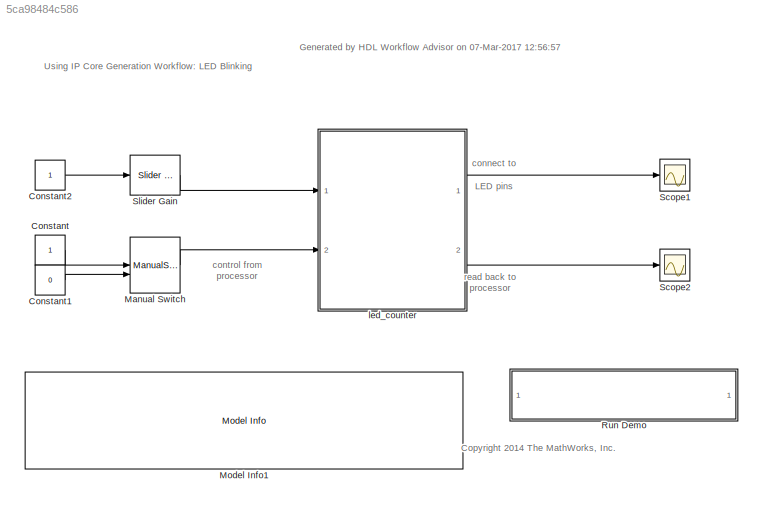
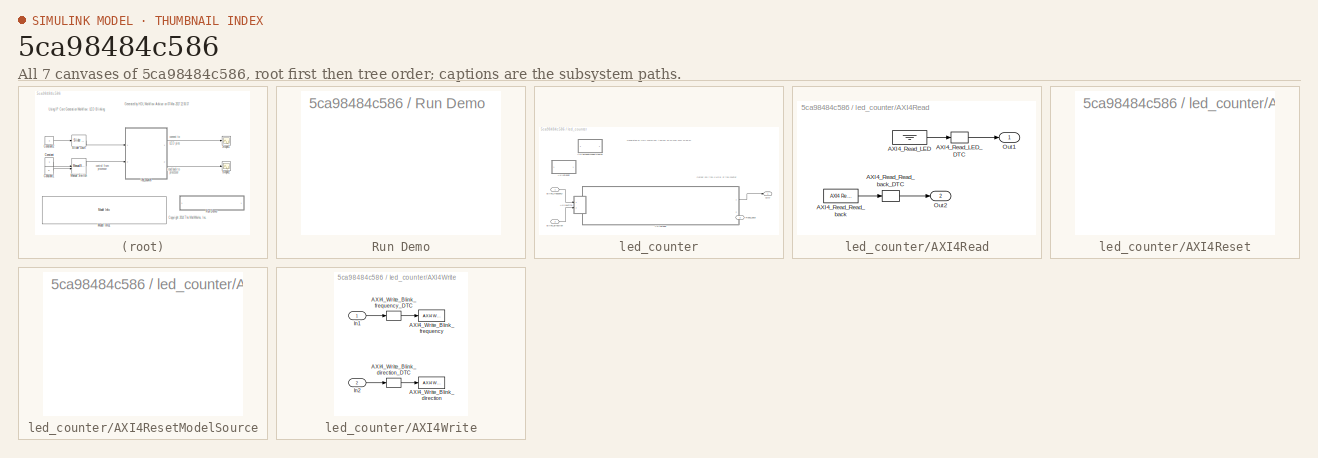
[diagram: thumbnail index - all 7 canvases of the model, root first then tree order]
MODEL slx_5ca98484c586
KIND model
CONFIG AbsTol = auto
CONFIG FixedStep = auto
CONFIG InitFcn = Ts = 1e-3;
CONFIG MaxStep = auto
CONFIG MinStep = auto
CONFIG RelTol = 1e-3
CONFIG SampleTimeConstraint = Unconstrained
CONFIG Solver = VariableStepAuto
CONFIG SolverMode = Auto
CONFIG SolverName = VariableStepAuto
CONFIG StartTime = 0.0
CONFIG StopTime = 10.0
BLOCK [Constant] Constant
  OutDataTypeStr = boolean
  SampleTime = Ts
BLOCK [Constant] Constant1
  OutDataTypeStr = boolean
  SampleTime = Ts
  Value = 0
BLOCK [Constant] Constant2
  OutDataTypeStr = fixdt(0, 4, 0)
  SampleTime = Ts
BLOCK [ManualSwitch] Manual Switch
BLOCK [Reference] Model Info1  REF=simulink/Model-Wide
Utilities/Model Info
  Ports = []
  SourceBlock = simulink/Model-Wide\nUtilities/Model Info
  SourceType = CMBlock
BLOCK [SubSystem] Run Demo
  OpenFcn = hdladvisor([bdroot, '/led_counter'])
  Ports = []
  RequestExecContextInheritance = off
  Variant = off
BLOCK [Scope] Scope1
  Ports = [1]
  ScopeSpecificationString = Simulink.scopes.TimeScopeBlockCfg('CurrentConfiguration', extmgr.ConfigurationSet(extmgr.Configuration('Core','General UI',true),extmgr.Configuration('Core','Source UI',true),extmgr.Configuration('Sources','WiredSimulink',true,'DataLoggingVariableName','ScopeData1','DataLoggingSaveFormat','StructureWithTime','DataLoggingDecimation','1','DataLoggingDecimateData',true),extmgr.Configuration('Visuals'...<+1643ch>
BLOCK [Scope] Scope2
  Ports = [1]
  ScopeSpecificationString = Simulink.scopes.TimeScopeBlockCfg('CurrentConfiguration', extmgr.ConfigurationSet(extmgr.Configuration('Core','General UI',true),extmgr.Configuration('Core','Source UI',true),extmgr.Configuration('Sources','WiredSimulink',true,'DataLoggingSaveFormat','StructureWithTime','DataLoggingDecimation','1','DataLoggingDecimateData',true),extmgr.Configuration('Visuals','Time Domain',true,'SerializedDisplays...<+1611ch>
BLOCK [Reference] Slider Gain  REF=simulink/Math
Operations/Slider
Gain
  Ports = [1, 1]
  SourceBlock = simulink/Math\nOperations/Slider\nGain
  SourceType = Slider Gain
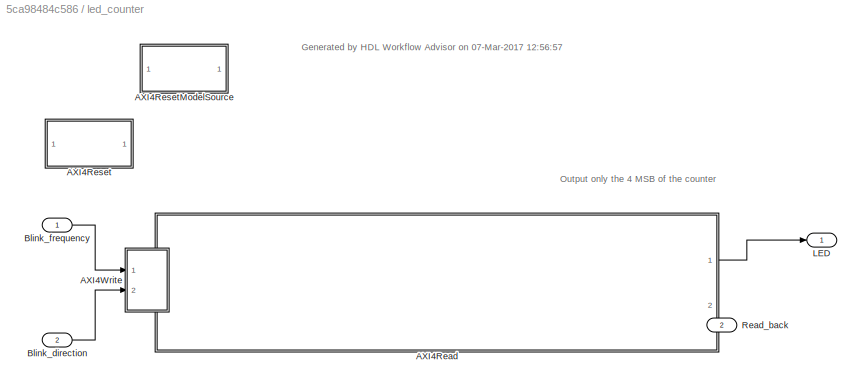
BLOCK [SubSystem] led_counter
  Ports = [2, 2]
  RequestExecContextInheritance = off
  TreatAsAtomicUnit = on
  Variant = off
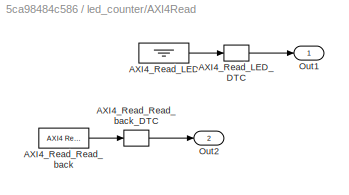
BLOCK [SubSystem] led_counter/AXI4Read
  Ports = [0, 2]
  Priority = 10
  RequestExecContextInheritance = off
  Variant = off
BLOCK [Ground] led_counter/AXI4Read/AXI4_Read_LED
BLOCK [DataTypeConversion] led_counter/AXI4Read/AXI4_Read_LED_DTC
  ConvertRealWorld = Stored Integer (SI)
  OutDataTypeStr = fixdt('ufix4')
  RndMeth = Floor
  SaturateOnIntegerOverflow = off
BLOCK [Reference] led_counter/AXI4Read/AXI4_Read_Read_back  REF=alterasoclib/AXI4 Read
  Ports = [0, 1]
  Priority = 3
  SourceBlock = alterasoclib/AXI4 Read
  SourceType = AXI4 Read
BLOCK [DataTypeConversion] led_counter/AXI4Read/AXI4_Read_Read_back_DTC
  ConvertRealWorld = Stored Integer (SI)
  OutDataTypeStr = fixdt('uint8')
  RndMeth = Floor
  SaturateOnIntegerOverflow = off
BLOCK [Outport] led_counter/AXI4Read/Out1
  IconDisplay = Port number
BLOCK [Outport] led_counter/AXI4Read/Out2
  IconDisplay = Port number
  Port = 2
BLOCK [SubSystem] led_counter/AXI4Reset
  CopyFcn = cccopyfcn(gcb)
  OpenFcn = ccopenfcn('System Initialize Function')
  Ports = []
  RequestExecContextInheritance = off
  Variant = off
BLOCK [SubSystem] led_counter/AXI4ResetModelSource
  CopyFcn = cccopyfcn(gcb)
  OpenFcn = ccopenfcn('Model Source')
  Ports = []
  RequestExecContextInheritance = off
  Variant = off
BLOCK [SubSystem] led_counter/AXI4Write
  Ports = [2]
  Priority = 1
  RequestExecContextInheritance = off
  Variant = off
BLOCK [Reference] led_counter/AXI4Write/AXI4_Write_Blink_direction  REF=alterasoclib/AXI4 Write
  Ports = [1]
  Priority = 2
  SourceBlock = alterasoclib/AXI4 Write
  SourceType = AXI4 Write
BLOCK [DataTypeConversion] led_counter/AXI4Write/AXI4_Write_Blink_direction_DTC
  ConvertRealWorld = Stored Integer (SI)
  OutDataTypeStr = uint32
  RndMeth = Floor
  SaturateOnIntegerOverflow = off
BLOCK [Reference] led_counter/AXI4Write/AXI4_Write_Blink_frequency  REF=alterasoclib/AXI4 Write
  Ports = [1]
  Priority = 1
  SourceBlock = alterasoclib/AXI4 Write
  SourceType = AXI4 Write
BLOCK [DataTypeConversion] led_counter/AXI4Write/AXI4_Write_Blink_frequency_DTC
  ConvertRealWorld = Stored Integer (SI)
  OutDataTypeStr = uint32
  RndMeth = Floor
  SaturateOnIntegerOverflow = off
BLOCK [Inport] led_counter/AXI4Write/In1
  IconDisplay = Port number
BLOCK [Inport] led_counter/AXI4Write/In2
  IconDisplay = Port number
  Port = 2
BLOCK [Inport] led_counter/Blink_direction
  IconDisplay = Port number
  OutDataTypeStr = boolean
  Port = 2
BLOCK [Inport] led_counter/Blink_frequency
  IconDisplay = Port number
  OutDataTypeStr = fixdt(0, 4, 0)
BLOCK [Outport] led_counter/LED
  IconDisplay = Port number
BLOCK [Outport] led_counter/Read_back
  IconDisplay = Port number
  Port = 2
ANNOTATION (root): <copyright redacted>
ANNOTATION (root): Generated by HDL Workflow Advisor on 07-Mar-2017 12:56:57
ANNOTATION (root): Using IP Core Generation Workflow: LED Blinking
ANNOTATION (root): connect to LED pins
ANNOTATION (root): control from processor
ANNOTATION (root): read back to processor
ANNOTATION led_counter: Generated by HDL Workflow Advisor on 07-Mar-2017 12:56:57
ANNOTATION led_counter: Output only the 4 MSB of the counter
LINE Constant1:1 -> Manual Switch:2
LINE Constant2:1 -> Slider Gain:1
LINE Constant:1 -> Manual Switch:1
LINE Manual Switch:1 -> led_counter:2
LINE Slider Gain:1 -> led_counter:1
LINE led_counter/AXI4Read/AXI4_Read_LED:1 -> led_counter/AXI4Read/AXI4_Read_LED_DTC:1
LINE led_counter/AXI4Read/AXI4_Read_LED_DTC:1 -> led_counter/AXI4Read/Out1:1
LINE led_counter/AXI4Read/AXI4_Read_Read_back:1 -> led_counter/AXI4Read/AXI4_Read_Read_back_DTC:1
LINE led_counter/AXI4Read/AXI4_Read_Read_back_DTC:1 -> led_counter/AXI4Read/Out2:1
LINE led_counter/AXI4Read:1 -> led_counter/LED:1
LINE led_counter/AXI4Read:2 -> led_counter/Read_back:1
LINE led_counter/AXI4Write/AXI4_Write_Blink_direction_DTC:1 -> led_counter/AXI4Write/AXI4_Write_Blink_direction:1
LINE led_counter/AXI4Write/AXI4_Write_Blink_frequency_DTC:1 -> led_counter/AXI4Write/AXI4_Write_Blink_frequency:1
LINE led_counter/AXI4Write/In1:1 -> led_counter/AXI4Write/AXI4_Write_Blink_frequency_DTC:1
LINE led_counter/AXI4Write/In2:1 -> led_counter/AXI4Write/AXI4_Write_Blink_direction_DTC:1
LINE led_counter/Blink_direction:1 -> led_counter/AXI4Write:2
LINE led_counter/Blink_frequency:1 -> led_counter/AXI4Write:1
LINE led_counter:1 -> Scope1:1
LINE led_counter:2 -> Scope2:1
